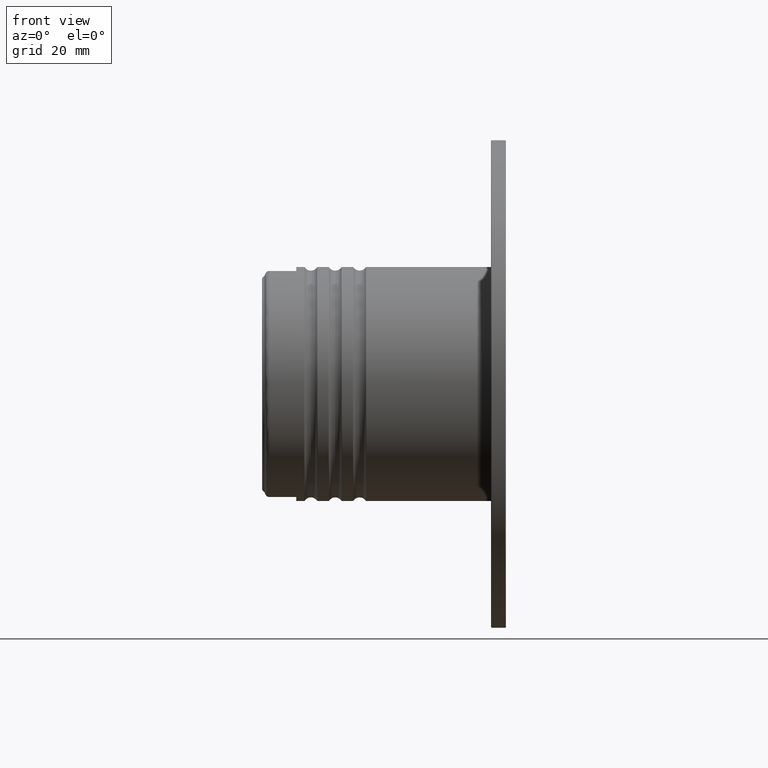
[diagram: clean part render]
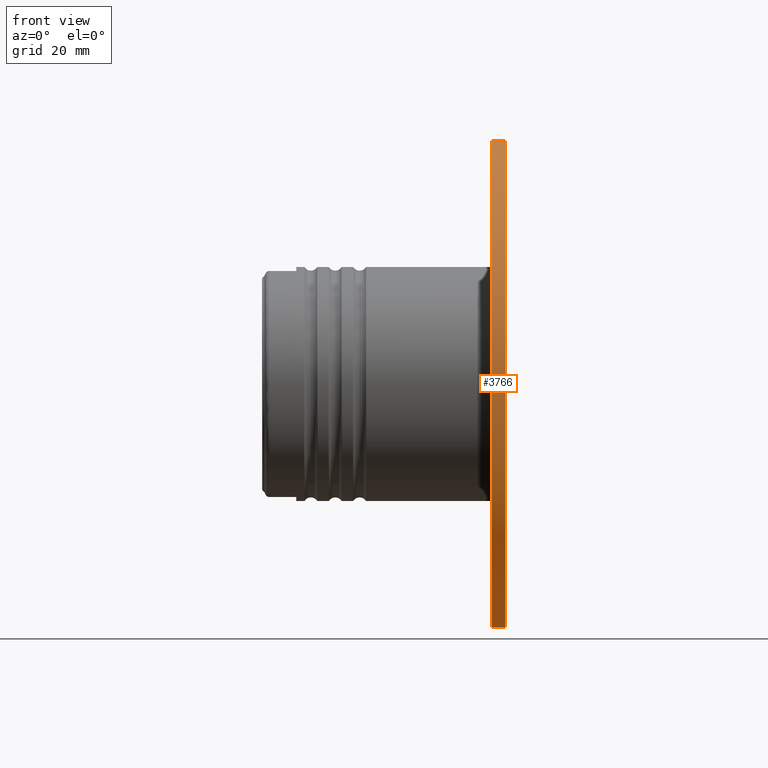
[diagram: same view with one face highlighted and labeled with its STEP entity id]
A machine part, front view. The second image highlights one B-rep face of the part: STEP entity #3766.
In plain terms, the highlighted cylindrical surface (partial cylindrical patch) has radius 50 mm, axis along (1, 0, 0).
Its self-contained STEP definition (entity closure, byte-faithful):
#278 = CIRCLE ( 'NONE', #1662, 50.00000000000000000 ) ;
#853 = CARTESIAN_POINT ( 'NONE',  ( -2.574939299999986719, 0.0000000000000000000, 0.0000000000000000000 ) ) ;
#861 = VERTEX_POINT ( 'NONE', #4122 ) ;
#921 = DIRECTION ( 'NONE',  ( 1.000000000000000000, -0.0000000000000000000, -0.0000000000000000000 ) ) ;
#993 = AXIS2_PLACEMENT_3D ( 'NONE', #2216, #2166, #6591 ) ;
#1271 = EDGE_CURVE ( 'NONE', #861, #7083, #278, .T. ) ;
#1662 = AXIS2_PLACEMENT_3D ( 'NONE', #3804, #6602, #2133 ) ;
#1711 = EDGE_CURVE ( 'NONE', #2259, #3924, #2129, .T. ) ;
#1754 = EDGE_CURVE ( 'NONE', #2259, #861, #2301, .T. ) ;
#1948 = CARTESIAN_POINT ( 'NONE',  ( -2.574939299999986719, 0.0000000000000000000, -50.00000000000000000 ) ) ;
#2129 = CIRCLE ( 'NONE', #6857, 50.00000000000000000 ) ;
#2133 = DIRECTION ( 'NONE',  ( 0.0000000000000000000, 0.0000000000000000000, -1.000000000000000000 ) ) ;
#2166 = DIRECTION ( 'NONE',  ( 1.000000000000000000, -0.0000000000000000000, -0.0000000000000000000 ) ) ;
#2216 = CARTESIAN_POINT ( 'NONE',  ( 12.17953282621120437, 0.0000000000000000000, 0.0000000000000000000 ) ) ;
#2259 = VERTEX_POINT ( 'NONE', #4182 ) ;
#2301 = LINE ( 'NONE', #6237, #5983 ) ;
#2415 = DIRECTION ( 'NONE',  ( 0.0000000000000000000, 0.0000000000000000000, -1.000000000000000000 ) ) ;
#2511 = LINE ( 'NONE', #5306, #3701 ) ;
#3117 = ORIENTED_EDGE ( 'NONE', *, *, #1711, .T. ) ;
#3701 = VECTOR ( 'NONE', #921, 1000.000000000000000 ) ;
#3766 = ADVANCED_FACE ( 'NONE', ( #3803 ), #6183, .T. ) ;
#3803 = FACE_OUTER_BOUND ( 'NONE', #4393, .T. ) ;
#3804 = CARTESIAN_POINT ( 'NONE',  ( 0.07506070000001113796, 0.0000000000000000000, 0.0000000000000000000 ) ) ;
#3924 = VERTEX_POINT ( 'NONE', #1948 ) ;
#4122 = CARTESIAN_POINT ( 'NONE',  ( 0.07506070000001113796, 6.123233995736766085E-15, 50.00000000000000000 ) ) ;
#4182 = CARTESIAN_POINT ( 'NONE',  ( -2.574939299999986719, 6.123233995736766085E-15, 50.00000000000000000 ) ) ;
#4393 = EDGE_LOOP ( 'NONE', ( #5490, #3117, #5870, #6527 ) ) ;
#5112 = EDGE_CURVE ( 'NONE', #3924, #7083, #2511, .T. ) ;
#5148 = CARTESIAN_POINT ( 'NONE',  ( 0.07506070000001113796, 0.0000000000000000000, -50.00000000000000000 ) ) ;
#5306 = CARTESIAN_POINT ( 'NONE',  ( 12.17953282621120437, 0.0000000000000000000, -50.00000000000000000 ) ) ;
#5490 = ORIENTED_EDGE ( 'NONE', *, *, #1754, .F. ) ;
#5740 = DIRECTION ( 'NONE',  ( 1.000000000000000000, -0.0000000000000000000, -0.0000000000000000000 ) ) ;
#5870 = ORIENTED_EDGE ( 'NONE', *, *, #5112, .T. ) ;
#5983 = VECTOR ( 'NONE', #6835, 1000.000000000000000 ) ;
#6183 = CYLINDRICAL_SURFACE ( 'NONE', #993, 50.00000000000000000 ) ;
#6237 = CARTESIAN_POINT ( 'NONE',  ( 12.17953282621120437, 6.123233995736766085E-15, 50.00000000000000000 ) ) ;
#6527 = ORIENTED_EDGE ( 'NONE', *, *, #1271, .F. ) ;
#6591 = DIRECTION ( 'NONE',  ( 0.0000000000000000000, 0.0000000000000000000, -1.000000000000000000 ) ) ;
#6602 = DIRECTION ( 'NONE',  ( 1.000000000000000000, -0.0000000000000000000, -0.0000000000000000000 ) ) ;
#6835 = DIRECTION ( 'NONE',  ( 1.000000000000000000, -0.0000000000000000000, -0.0000000000000000000 ) ) ;
#6857 = AXIS2_PLACEMENT_3D ( 'NONE', #853, #5740, #2415 ) ;
#7083 = VERTEX_POINT ( 'NONE', #5148 ) ;